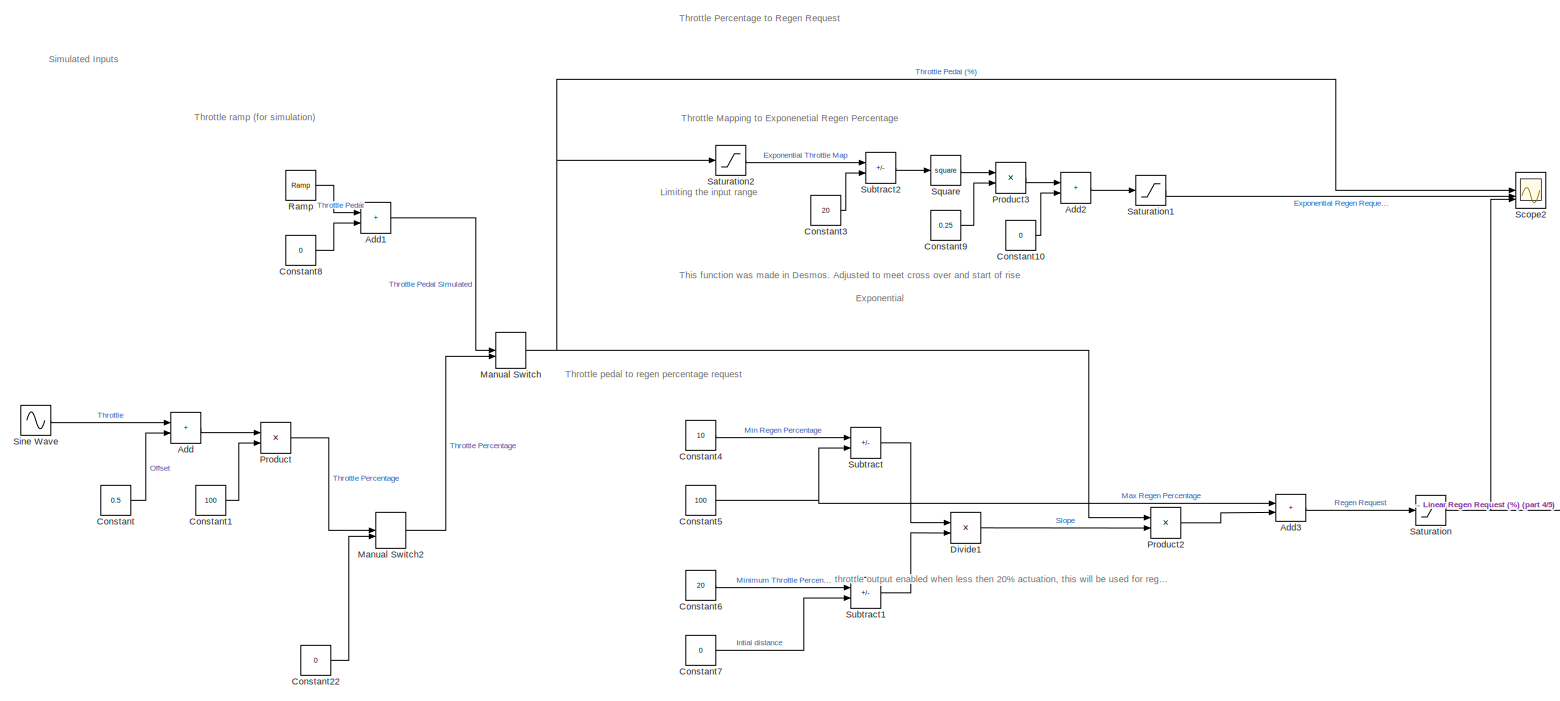
[diagram: root canvas - part 1/5, top left region]
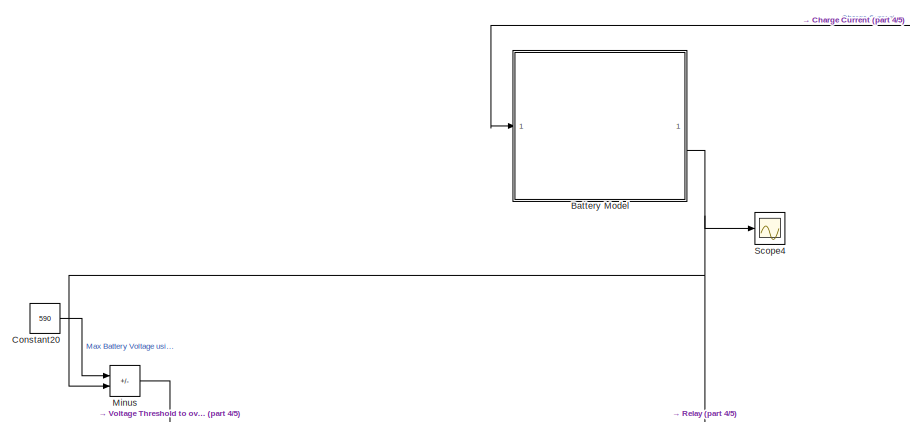
[diagram: root canvas - part 2/5, top right region]
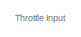
[diagram: root canvas - part 3/5, top left region]
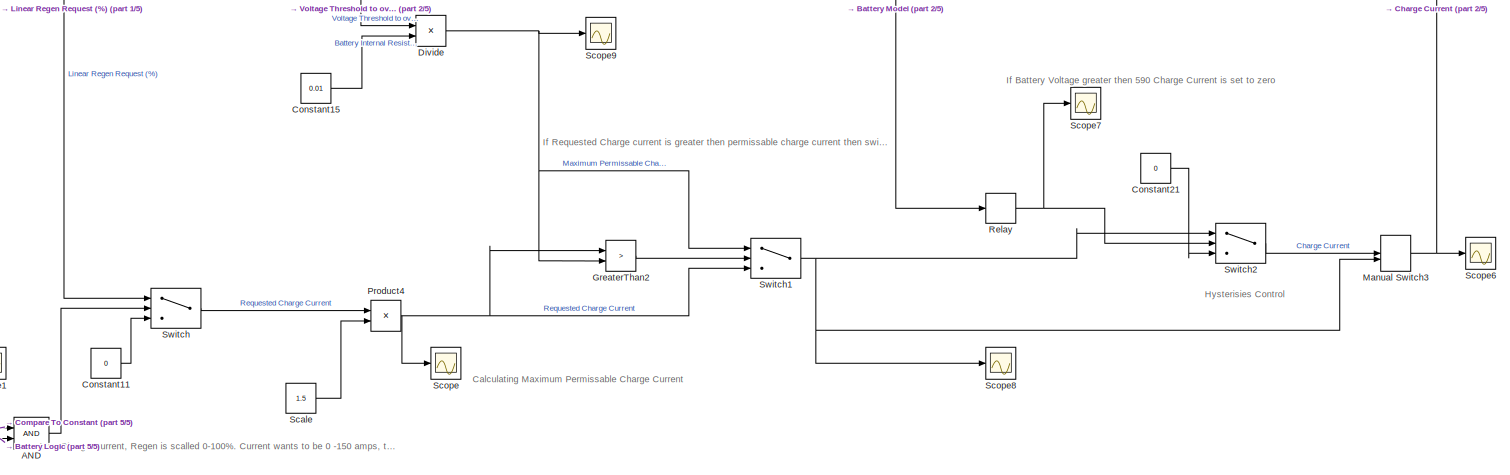
[diagram: root canvas - part 4/5, middle right region]
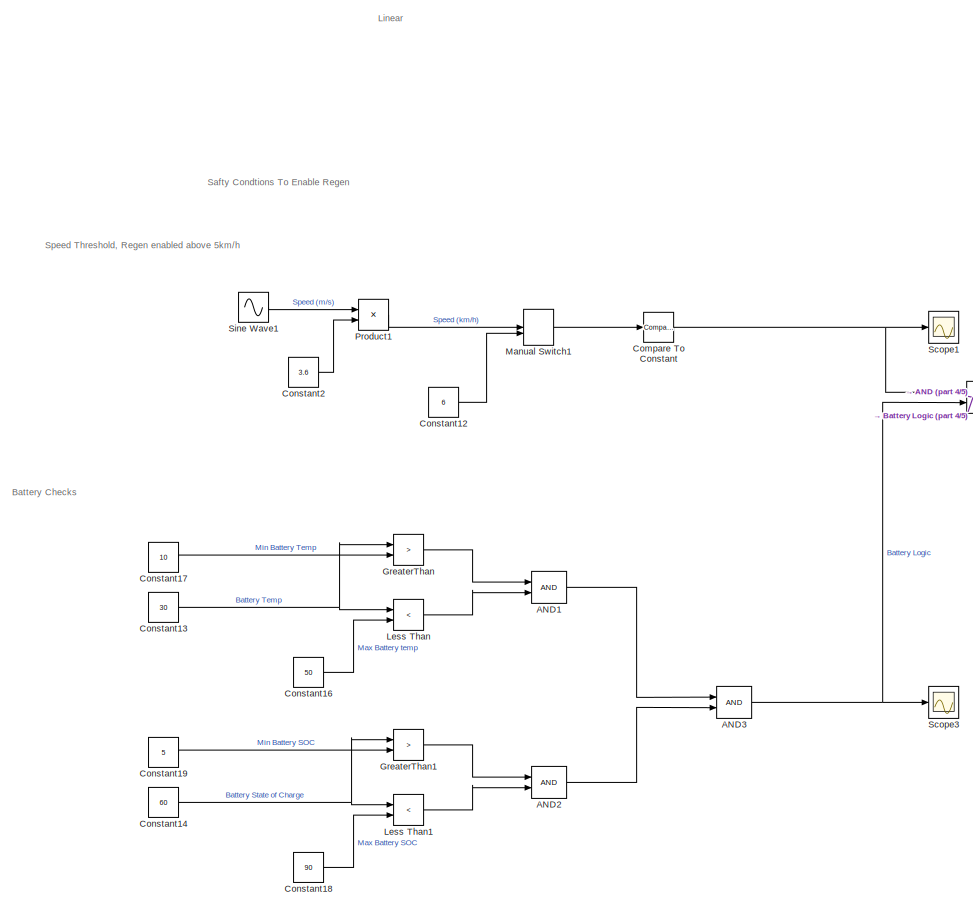
[diagram: root canvas - part 5/5, bottom center region]
MODEL slx_0935a788a314
KIND model
CONFIG AbsTol = auto
CONFIG EnableMultiTasking = off
CONFIG FixedStep = auto
CONFIG MaxStep = auto
CONFIG MinStep = auto
CONFIG RelTol = 1e-3
CONFIG SampleTimeConstraint = Unconstrained
CONFIG SolverName = VariableStepAuto
CONFIG StartTime = 0.0
CONFIG StopTime = 2000
BLOCK [Logic] AND
  AllPortsSameDT = off
  IconShape = distinctive
  OutDataTypeStr = boolean
BLOCK [Logic] AND1
  AllPortsSameDT = off
  IconShape = distinctive
  OutDataTypeStr = boolean
BLOCK [Logic] AND2
  AllPortsSameDT = off
  IconShape = distinctive
  OutDataTypeStr = boolean
BLOCK [Logic] AND3
  AllPortsSameDT = off
  IconShape = distinctive
  OutDataTypeStr = boolean
BLOCK [Sum] Add
  IconShape = rectangular
BLOCK [Sum] Add1
  IconShape = rectangular
BLOCK [Sum] Add2
  IconShape = rectangular
BLOCK [Sum] Add3
  IconShape = rectangular
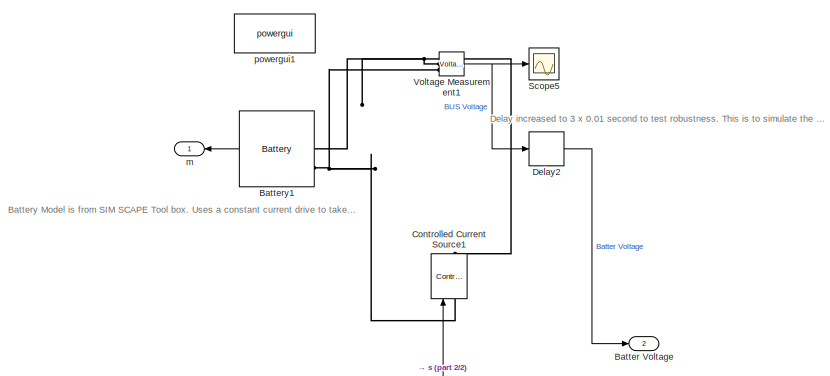
[diagram: Battery Model - part 1/2, top left region]
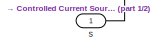
[diagram: Battery Model - part 2/2, bottom right region]
BLOCK [SubSystem] Battery Model
BLOCK [Outport] Battery Model/Batter Voltage
  Port = 2
BLOCK [Reference] Battery Model/Battery1  REF=spsBatteryLib/Battery
  LibrarySourceBlock = sps_lib/Sources/Battery
  SourceBlock = spsBatteryLib/Battery
  SourceType = Battery
BLOCK [Reference] Battery Model/Controlled Current Source1  REF=spsControlledCurrentSourceLib/Controlled Current Source
  LibrarySourceBlock = sps_lib/Sources/Controlled Current Source
  SourceBlock = spsControlledCurrentSourceLib/Controlled Current Source
  SourceType = Controlled Current Source
BLOCK [Delay] Battery Model/Delay2
  DelayLength = 5
  InitialCondition = 580
  InputPortMap = u0
BLOCK [Scope] Battery Model/Scope5
  Floating = off
  NumInputPorts = 1
  ScopeSpecificationString = Simulink.scopes.TimeScopeBlockCfg('CurrentConfiguration', extmgr.ConfigurationSet(extmgr.Configuration('Core','General UI',true),extmgr.Configuration('Core','Source UI',true),extmgr.Configuration('Sources','WiredSimulink',true,'DataLoggingVariableName','ScopeData1'),extmgr.Configuration('Visuals','Time Domain',true,'SerializedDisplays',{struct('MinYLimReal','576.69043','MaxYLimReal','580.29452','Y...<+1550ch>
BLOCK [Reference] Battery Model/Voltage Measurement1  REF=spsVoltageMeasurementLib/Voltage Measurement
  LibrarySourceBlock = sps_lib/Sensors and Measurements/Voltage Measurement
  SourceBlock = spsVoltageMeasurementLib/Voltage Measurement
  SourceType = Voltage Measurement
  UserDataPersistent = on
BLOCK [Outport] Battery Model/m
BLOCK [Reference] Battery Model/powergui1  REF=spspowerguiLib/powergui
  LibrarySourceBlock = sps_lib/powergui
  Priority = 1
  SourceBlock = spspowerguiLib/powergui
  SourceType = PSB option menu block
BLOCK [Inport] Battery Model/s
BLOCK [Reference] Compare To Constant  REF=simulink/Logic and Bit
Operations/Compare
To Constant
  SourceBlock = simulink/Logic and Bit\nOperations/Compare\nTo Constant
  SourceType = Compare To Constant
BLOCK [Constant] Constant
  Value = 0.5
BLOCK [Constant] Constant1
  Value = 100
BLOCK [Constant] Constant10
  Value = 0
BLOCK [Constant] Constant11
  Value = 0
BLOCK [Constant] Constant12
  Value = 6
BLOCK [Constant] Constant13
  Value = 30
BLOCK [Constant] Constant14
  Value = 60
BLOCK [Constant] Constant15
  Value = 0.01
BLOCK [Constant] Constant16
  Value = 50
BLOCK [Constant] Constant17
  Value = 10
BLOCK [Constant] Constant18
  Value = 90
BLOCK [Constant] Constant19
  Value = 5
BLOCK [Constant] Constant2
  Value = 3.6
BLOCK [Constant] Constant20
  Value = 590
BLOCK [Constant] Constant21
  Value = 0
BLOCK [Constant] Constant22
  Value = 0
BLOCK [Constant] Constant3
  Value = 20
BLOCK [Constant] Constant4
  Value = 10
BLOCK [Constant] Constant5
  Value = 100
BLOCK [Constant] Constant6
  Value = 20
BLOCK [Constant] Constant7
  Value = 0
BLOCK [Constant] Constant8
  Value = 0
BLOCK [Constant] Constant9
  Value = 0.25
BLOCK [Product] Divide
  Inputs = */
BLOCK [Product] Divide1
  Inputs = */
BLOCK [RelationalOperator] GreaterThan
  InputSameDT = off
  Operator = >
  OutDataTypeStr = boolean
  RndMeth = Simplest
BLOCK [RelationalOperator] GreaterThan1
  InputSameDT = off
  Operator = >
  OutDataTypeStr = boolean
  RndMeth = Simplest
BLOCK [RelationalOperator] GreaterThan2
  InputSameDT = off
  Operator = >
  OutDataTypeStr = boolean
  RndMeth = Simplest
BLOCK [RelationalOperator] Less Than
  InputSameDT = off
  Operator = <
  OutDataTypeStr = boolean
  RndMeth = Simplest
BLOCK [RelationalOperator] Less Than1
  InputSameDT = off
  Operator = <
  OutDataTypeStr = boolean
  RndMeth = Simplest
BLOCK [ManualSwitch] Manual Switch
  CurrentSetting = 0
BLOCK [ManualSwitch] Manual Switch1
  CurrentSetting = 0
BLOCK [ManualSwitch] Manual Switch2
BLOCK [ManualSwitch] Manual Switch3
BLOCK [Sum] Minus
  IconShape = rectangular
  Inputs = +-
BLOCK [Product] Product
BLOCK [Product] Product1
BLOCK [Product] Product2
BLOCK [Product] Product3
BLOCK [Product] Product4
BLOCK [Reference] Ramp  REF=simulink/Sources/Ramp
  SourceBlock = simulink/Sources/Ramp
  SourceType = Ramp
BLOCK [Relay] Relay
  OffOutputValue = 1
  OffSwitchValue = 585
  OnOutputValue = 0
  OnSwitchValue = 590
BLOCK [Saturate] Saturation
  LowerLimit = 0
  UpperLimit = 100
BLOCK [Saturate] Saturation1
  LowerLimit = 0
  UpperLimit = 100
BLOCK [Saturate] Saturation2
  LowerLimit = 0
  UpperLimit = 20
BLOCK [Constant] Scale
  Value = 1.5
BLOCK [Scope] Scope
  Floating = off
  NumInputPorts = 1
  ScopeSpecificationString = Simulink.scopes.TimeScopeBlockCfg('CurrentConfiguration', extmgr.ConfigurationSet(extmgr.Configuration('Core','General UI',true),extmgr.Configuration('Core','Source UI',true),extmgr.Configuration('Sources','WiredSimulink',true),extmgr.Configuration('Visuals','Time Domain',true,'SerializedDisplays',{struct('MinYLimReal','-18.75','MaxYLimReal','168.75','YLabelReal','','MinYLimMag','0.00000','MaxYLim...<+1425ch>
BLOCK [Scope] Scope1
  Floating = off
  NumInputPorts = 1
  ScopeSpecificationString = Simulink.scopes.TimeScopeBlockCfg('CurrentConfiguration', extmgr.ConfigurationSet(extmgr.Configuration('Core','General UI',true),extmgr.Configuration('Core','Source UI',true),extmgr.Configuration('Sources','WiredSimulink',true,'DataLoggingVariableName','ScopeData1'),extmgr.Configuration('Visuals','Time Domain',true),extmgr.Configuration('Tools','Plot Navigation',true),extmgr.Configuration('Tools',...<+40ch>
BLOCK [Scope] Scope2
  Floating = off
  NumInputPorts = 3
  ScopeSpecificationString = Simulink.scopes.TimeScopeBlockCfg('CurrentConfiguration', extmgr.ConfigurationSet(extmgr.Configuration('Core','General UI',true,'FigureColor',[1 1 1]),extmgr.Configuration('Core','Source UI',true),extmgr.Configuration('Sources','WiredSimulink',true,'DataLoggingVariableName','ScopeData2'),extmgr.Configuration('Visuals','Time Domain',true,'SerializedDisplays',{struct('MinYLimReal','-22.625','MaxYLim...<+1472ch>
BLOCK [Scope] Scope3
  Floating = off
  NumInputPorts = 1
  ScopeSpecificationString = Simulink.scopes.TimeScopeBlockCfg('CurrentConfiguration', extmgr.ConfigurationSet(extmgr.Configuration('Core','General UI',true),extmgr.Configuration('Core','Source UI',true),extmgr.Configuration('Sources','WiredSimulink',true,'DataLoggingVariableName','ScopeData3'),extmgr.Configuration('Visuals','Time Domain',true,'SerializedDisplays',{struct('MinYLimReal','0.9','MaxYLimReal','1.1','YLabelReal','...<+1462ch>
BLOCK [Scope] Scope4
  Floating = off
  NumInputPorts = 1
  ScopeSpecificationString = Simulink.scopes.TimeScopeBlockCfg('CurrentConfiguration', extmgr.ConfigurationSet(extmgr.Configuration('Core','General UI',true,'FigureColor',[1 1 1]),extmgr.Configuration('Core','Source UI',true),extmgr.Configuration('Sources','WiredSimulink',true,'DataLoggingVariableName','ScopeData1'),extmgr.Configuration('Visuals','Time Domain',true,'SerializedDisplays',{struct('MinYLimReal','578.75','MaxYLimR...<+1631ch>
BLOCK [Scope] Scope6
  Floating = off
  NumInputPorts = 1
  ScopeSpecificationString = Simulink.scopes.TimeScopeBlockCfg('CurrentConfiguration', extmgr.ConfigurationSet(extmgr.Configuration('Core','General UI',true,'FigureColor',[1 1 1]),extmgr.Configuration('Core','Source UI',true),extmgr.Configuration('Sources','WiredSimulink',true,'DataLoggingVariableName','ScopeData1'),extmgr.Configuration('Visuals','Time Domain',true,'SerializedDisplays',{struct('MinYLimReal','-18.75','MaxYLimR...<+1620ch>
BLOCK [Scope] Scope7
  Floating = off
  NumInputPorts = 1
  ScopeSpecificationString = Simulink.scopes.TimeScopeBlockCfg('CurrentConfiguration', extmgr.ConfigurationSet(extmgr.Configuration('Core','General UI',true),extmgr.Configuration('Core','Source UI',true),extmgr.Configuration('Sources','WiredSimulink',true,'DataLoggingVariableName','ScopeData2'),extmgr.Configuration('Visuals','Time Domain',true,'SerializedDisplays',{struct('MinYLimReal','-0.125','MaxYLimReal','1.125','YLabelRe...<+1485ch>
BLOCK [Scope] Scope8
  Floating = off
  NumInputPorts = 1
  ScopeSpecificationString = Simulink.scopes.TimeScopeBlockCfg('CurrentConfiguration', extmgr.ConfigurationSet(extmgr.Configuration('Core','General UI',true),extmgr.Configuration('Core','Source UI',true),extmgr.Configuration('Sources','WiredSimulink',true,'DataLoggingVariableName','ScopeData3'),extmgr.Configuration('Visuals','Time Domain',true,'SerializedDisplays',{struct('MinYLimReal','-18.75','MaxYLimReal','168.75','YLabelR...<+1503ch>
BLOCK [Scope] Scope9
  Floating = off
  NumInputPorts = 1
  ScopeSpecificationString = Simulink.scopes.TimeScopeBlockCfg('CurrentConfiguration', extmgr.ConfigurationSet(extmgr.Configuration('Core','General UI',true),extmgr.Configuration('Core','Source UI',true),extmgr.Configuration('Sources','WiredSimulink',true,'DataLoggingVariableName','ScopeData4'),extmgr.Configuration('Visuals','Time Domain',true,'SerializedDisplays',{struct('MinYLimReal','-124.99988','MaxYLimReal','1124.99999',...<+1510ch>
BLOCK [Sin] Sine Wave
  Amplitude = 0.5
  SampleTime = 0
BLOCK [Sin] Sine Wave1
  SampleTime = 0
BLOCK [Math] Square
  Operator = square
BLOCK [Sum] Subtract
  IconShape = rectangular
  Inputs = +-
BLOCK [Sum] Subtract1
  IconShape = rectangular
  Inputs = +-
BLOCK [Sum] Subtract2
  IconShape = rectangular
  Inputs = +-
BLOCK [Switch] Switch
  Criteria = u2 > Threshold
  InputSameDT = off
  SaturateOnIntegerOverflow = off
BLOCK [Switch] Switch1
  Criteria = u2 > Threshold
  InputSameDT = off
  SaturateOnIntegerOverflow = off
BLOCK [Switch] Switch2
  Criteria = u2 > Threshold
  InputSameDT = off
  SaturateOnIntegerOverflow = off
  Threshold = 0.5
ANNOTATION (root): Calculating Maximum Permissable Charge Current
ANNOTATION (root): Exponential
ANNOTATION (root): Safty Condtions To Enable Regen
ANNOTATION (root): Simulated Inputs
ANNOTATION (root): Throttle Percentage to Regen Request
ANNOTATION (root): Linear
ANNOTATION (root): Battery Checks
ANNOTATION (root): Hysterisies Control
ANNOTATION (root): If Battery Voltage greater then 590 Charge Current is set to zero
ANNOTATION (root): If Requested Charge current is greater then permissable charge current then switch to permisable
ANNOTATION (root): Limiting the input range
ANNOTATION (root): Max Charge Current, Regen is scalled 0-100%. Current wants to be 0 -150 amps, therfore scale by 1.5
ANNOTATION (root): Speed Threshold, Regen enabled above 5km/h
ANNOTATION (root): This function was made in Desmos. Adjusted to meet cross over and start of rise
ANNOTATION (root): Throttle Input
ANNOTATION (root): Throttle Mapping to Exponenetial Regen Percentage
ANNOTATION (root): Throttle pedal to regen percentage request
ANNOTATION (root): Throttle ramp (for simulation)
ANNOTATION (root): throttle output enabled when less then 20% actuation, this will be used for regen
ANNOTATION Battery Model: Battery Model is from SIM SCAPE Tool box. Uses a constant current drive to take the current request from controller and apply load to the battery
ANNOTATION Battery Model: Delay increased to 3 x 0.01 second to test robustness. This is to simulate the delay of having voltage measurments sent to the VCU
LINE AND1:1 -> AND3:1
LINE AND2:1 -> AND3:2
NET AND3:1 -> AND:2, Scope3:1
LINE AND:1 -> Switch:2
LINE Add1:1 -> Manual Switch:1
LINE Add2:1 -> Saturation1:1
LINE Add3:1 -> Saturation:1
LINE Add:1 -> Product:1
LINE Battery Model/Battery1:1 -> Battery Model/m:1
LINE Battery Model/Delay2:1 -> Battery Model/Batter Voltage:1
NET Battery Model/Voltage Measurement1:1 -> Battery Model/Delay2:1, Battery Model/Scope5:1
LINE Battery Model/s:1 -> Battery Model/Controlled Current Source1:1
NET Battery Model:2 -> Minus:2, Relay:1, Scope4:1
NET Compare To Constant:1 -> AND:1, Scope1:1
LINE Constant10:1 -> Add2:2
LINE Constant11:1 -> Switch:3
LINE Constant12:1 -> Manual Switch1:2
NET Constant13:1 -> GreaterThan:1, Less Than:1
NET Constant14:1 -> GreaterThan1:1, Less Than1:1
LINE Constant15:1 -> Divide:2
LINE Constant16:1 -> Less Than:2
LINE Constant17:1 -> GreaterThan:2
LINE Constant18:1 -> Less Than1:2
LINE Constant19:1 -> GreaterThan1:2
LINE Constant1:1 -> Product:2
LINE Constant20:1 -> Minus:1
LINE Constant21:1 -> Switch2:3
LINE Constant22:1 -> Manual Switch2:2
LINE Constant2:1 -> Product1:2
LINE Constant3:1 -> Subtract2:2
LINE Constant4:1 -> Subtract:1
NET Constant5:1 -> Add3:1, Subtract:2
LINE Constant6:1 -> Subtract1:1
LINE Constant7:1 -> Subtract1:2
LINE Constant8:1 -> Add1:2
LINE Constant9:1 -> Product3:2
LINE Constant:1 -> Add:2
LINE Divide1:1 -> Product2:2
NET Divide:1 -> GreaterThan2:2, Scope9:1, Switch1:1
LINE GreaterThan1:1 -> AND2:1
LINE GreaterThan2:1 -> Switch1:2
LINE GreaterThan:1 -> AND1:1
LINE Less Than1:1 -> AND2:2
LINE Less Than:1 -> AND1:2
LINE Manual Switch1:1 -> Compare To Constant:1
LINE Manual Switch2:1 -> Manual Switch:2
NET Manual Switch3:1 -> Battery Model:1, Scope6:1
NET Manual Switch:1 -> Product2:1, Saturation2:1, Scope2:1
LINE Minus:1 -> Divide:1
LINE Product1:1 -> Manual Switch1:1
LINE Product2:1 -> Add3:2
LINE Product3:1 -> Add2:1
NET Product4:1 -> GreaterThan2:1, Scope:1, Switch1:3
LINE Product:1 -> Manual Switch2:1
LINE Ramp:1 -> Add1:1
NET Relay:1 -> Scope7:1, Switch2:2
LINE Saturation1:1 -> Scope2:2
LINE Saturation2:1 -> Subtract2:1
NET Saturation:1 -> Scope2:3, Switch:1
LINE Scale:1 -> Product4:2
LINE Sine Wave1:1 -> Product1:1
LINE Sine Wave:1 -> Add:1
LINE Square:1 -> Product3:1
LINE Subtract1:1 -> Divide1:2
LINE Subtract2:1 -> Square:1
LINE Subtract:1 -> Divide1:1
NET Switch1:1 -> Manual Switch3:2, Scope8:1, Switch2:1
LINE Switch2:1 -> Manual Switch3:1
LINE Switch:1 -> Product4:1
PNET net1: Battery Model/Battery1:LConn1 -- Battery Model/Controlled Current Source1:RConn1 -- Battery Model/Voltage Measurement1:LConn1
PNET net2: Battery Model/Battery1:LConn2 -- Battery Model/Controlled Current Source1:LConn1 -- Battery Model/Voltage Measurement1:LConn2
note: NET lines group one-source signal fan-out (src -> all destinations, sorted); 1:1 wires keep LINE; PNET lines group multi-terminal physical nets as a canonical sorted terminal list (undirected conserving connections); 2-terminal nets keep the pairwise PLINE form
